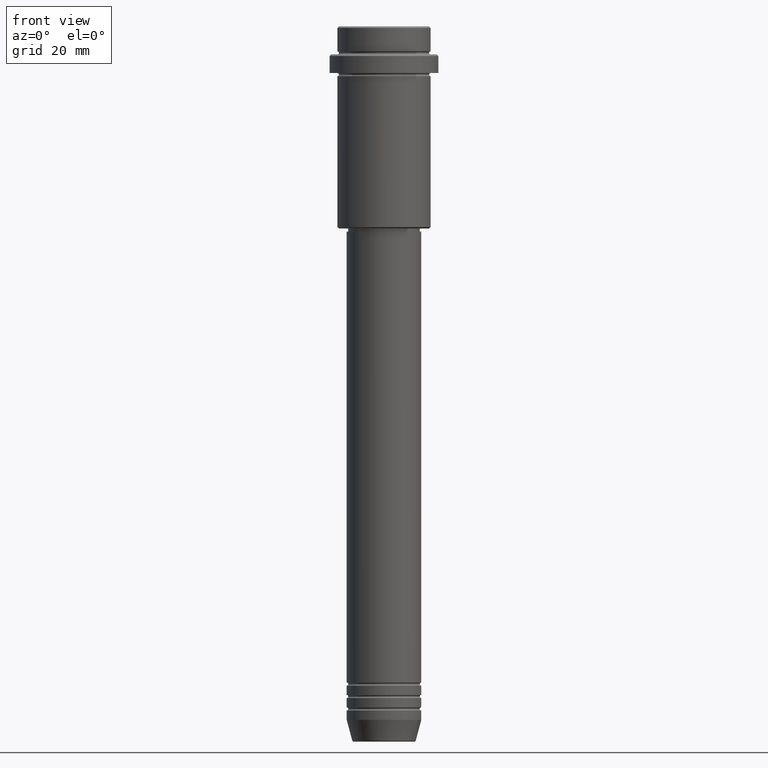
[diagram: clean part render]
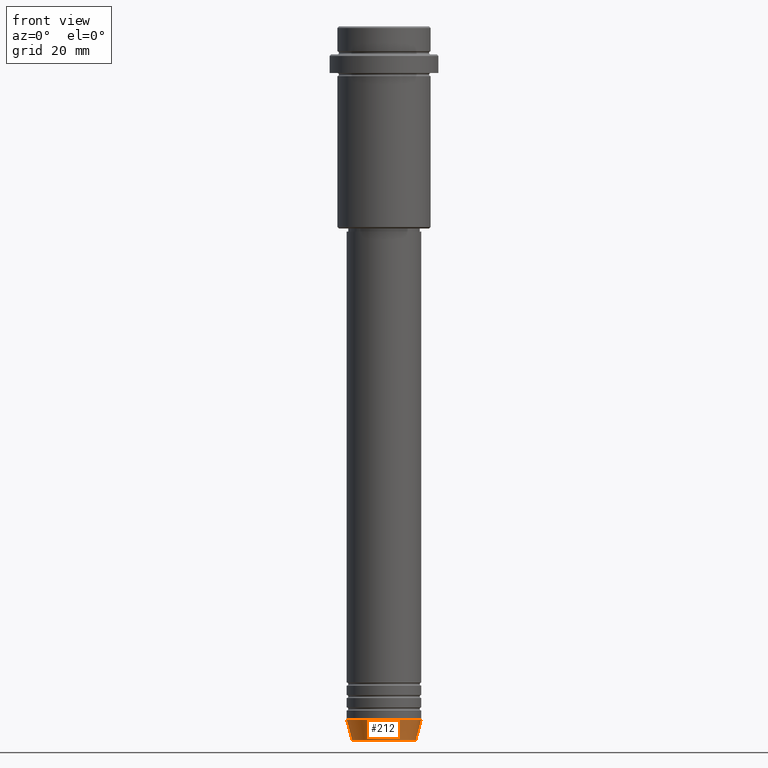
[diagram: same view with one face highlighted and labeled with its STEP entity id]
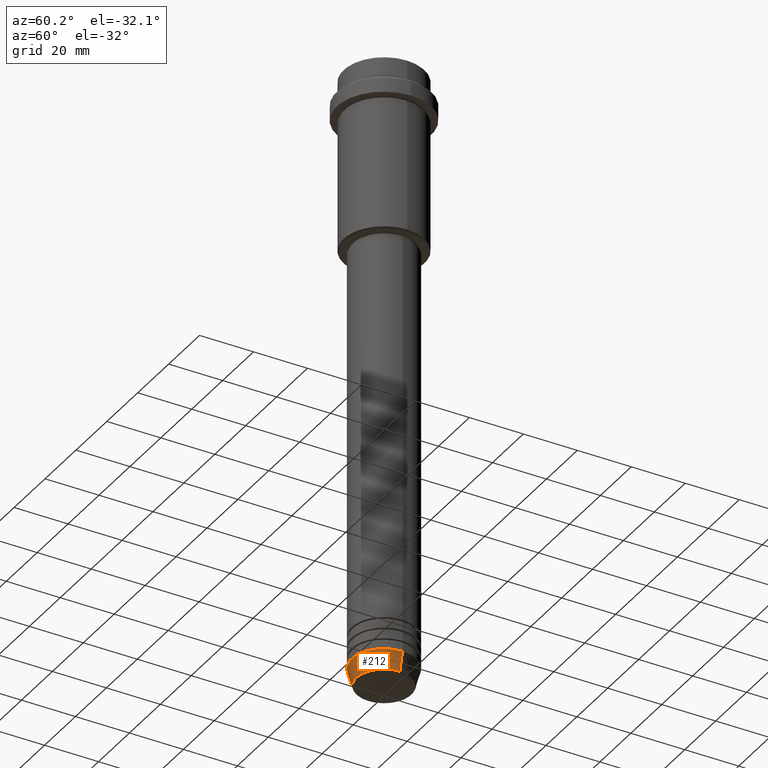
[diagram: same view with one face highlighted and labeled with its STEP entity id]
A machine part, front view. The second image highlights one B-rep face of the part: STEP entity #212.
A second angle (auxiliary view) of the same face is appended — the face is thin or edge-on in the first view.
In plain terms, the highlighted conical surface has half-angle 15 deg.
Its self-contained STEP definition (entity closure, byte-faithful):
#14 = CARTESIAN_POINT ( 'NONE',  ( 0.000000000000000000, 0.000000000000000000, -229.6294095225512706 ) ) ;
#54 = CARTESIAN_POINT ( 'NONE',  ( 10.22365507213718416, 0.000000000000000000, -229.6294095225512706 ) ) ;
#106 = CIRCLE ( 'NONE', #1239, 10.22365507213718416 ) ;
#107 = VECTOR ( 'NONE', #1321, 1000.000000000000000 ) ;
#122 = LINE ( 'NONE', #1097, #107 ) ;
#127 = AXIS2_PLACEMENT_3D ( 'NONE', #403, #1263, #308 ) ;
#146 = VERTEX_POINT ( 'NONE', #1015 ) ;
#212 = ADVANCED_FACE ( 'NONE', ( #512 ), #1037, .T. ) ;
#217 = CARTESIAN_POINT ( 'NONE',  ( 12.00000000000000000, 0.000000000000000000, -223.0000000000000000 ) ) ;
#219 = DIRECTION ( 'NONE',  ( 1.000000000000000000, 0.000000000000000000, 0.000000000000000000 ) ) ;
#221 = EDGE_CURVE ( 'NONE', #494, #1029, #1352, .T. ) ;
#243 = ORIENTED_EDGE ( 'NONE', *, *, #221, .F. ) ;
#308 = DIRECTION ( 'NONE',  ( 1.000000000000000000, 0.000000000000000000, 0.000000000000000000 ) ) ;
#403 = CARTESIAN_POINT ( 'NONE',  ( 0.000000000000000000, 0.000000000000000000, -223.0000000000000000 ) ) ;
#443 = EDGE_CURVE ( 'NONE', #146, #1378, #106, .T. ) ;
#494 = VERTEX_POINT ( 'NONE', #631 ) ;
#512 = FACE_OUTER_BOUND ( 'NONE', #1055, .T. ) ;
#612 = ORIENTED_EDGE ( 'NONE', *, *, #702, .F. ) ;
#631 = CARTESIAN_POINT ( 'NONE',  ( -12.00000000000000000, 1.469576158976823947E-15, -223.0000000000000000 ) ) ;
#659 = EDGE_CURVE ( 'NONE', #1378, #1029, #888, .T. ) ;
#702 = EDGE_CURVE ( 'NONE', #146, #494, #122, .T. ) ;
#753 = CARTESIAN_POINT ( 'NONE',  ( 0.000000000000000000, 0.000000000000000000, -223.0000000000000000 ) ) ;
#755 = AXIS2_PLACEMENT_3D ( 'NONE', #753, #1381, #950 ) ;
#774 = DIRECTION ( 'NONE',  ( 0.2588190451025213501, 0.000000000000000000, 0.9659258262890680902 ) ) ;
#846 = VECTOR ( 'NONE', #774, 1000.000000000000000 ) ;
#888 = LINE ( 'NONE', #217, #846 ) ;
#950 = DIRECTION ( 'NONE',  ( 1.000000000000000000, 0.000000000000000000, 0.000000000000000000 ) ) ;
#1009 = ORIENTED_EDGE ( 'NONE', *, *, #659, .T. ) ;
#1015 = CARTESIAN_POINT ( 'NONE',  ( -10.22365507213718416, 1.360806402472382350E-15, -229.6294095225512706 ) ) ;
#1029 = VERTEX_POINT ( 'NONE', #1075 ) ;
#1037 = CONICAL_SURFACE ( 'NONE', #755, 12.00000000000000000, 0.2617993877991500740 ) ;
#1055 = EDGE_LOOP ( 'NONE', ( #612, #1256, #1009, #243 ) ) ;
#1075 = CARTESIAN_POINT ( 'NONE',  ( 12.00000000000000000, 0.000000000000000000, -223.0000000000000000 ) ) ;
#1097 = CARTESIAN_POINT ( 'NONE',  ( -12.00000000000000000, 1.469576158976823947E-15, -223.0000000000000000 ) ) ;
#1187 = DIRECTION ( 'NONE',  ( -0.000000000000000000, -0.000000000000000000, 1.000000000000000000 ) ) ;
#1239 = AXIS2_PLACEMENT_3D ( 'NONE', #14, #1187, #219 ) ;
#1256 = ORIENTED_EDGE ( 'NONE', *, *, #443, .T. ) ;
#1263 = DIRECTION ( 'NONE',  ( -0.000000000000000000, -0.000000000000000000, 1.000000000000000000 ) ) ;
#1321 = DIRECTION ( 'NONE',  ( -0.2588190451025213501, 3.169619151431772337E-17, 0.9659258262890680902 ) ) ;
#1352 = CIRCLE ( 'NONE', #127, 12.00000000000000000 ) ;
#1378 = VERTEX_POINT ( 'NONE', #54 ) ;
#1381 = DIRECTION ( 'NONE',  ( -0.000000000000000000, -0.000000000000000000, 1.000000000000000000 ) ) ;